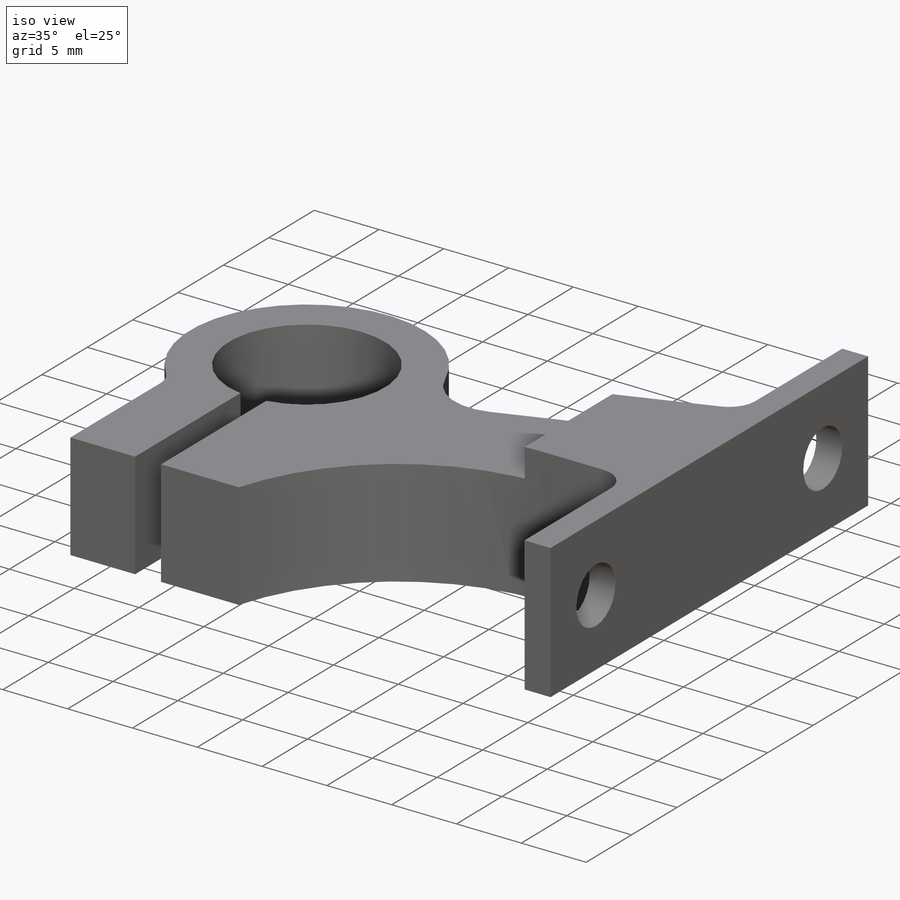
[diagram: iso view]
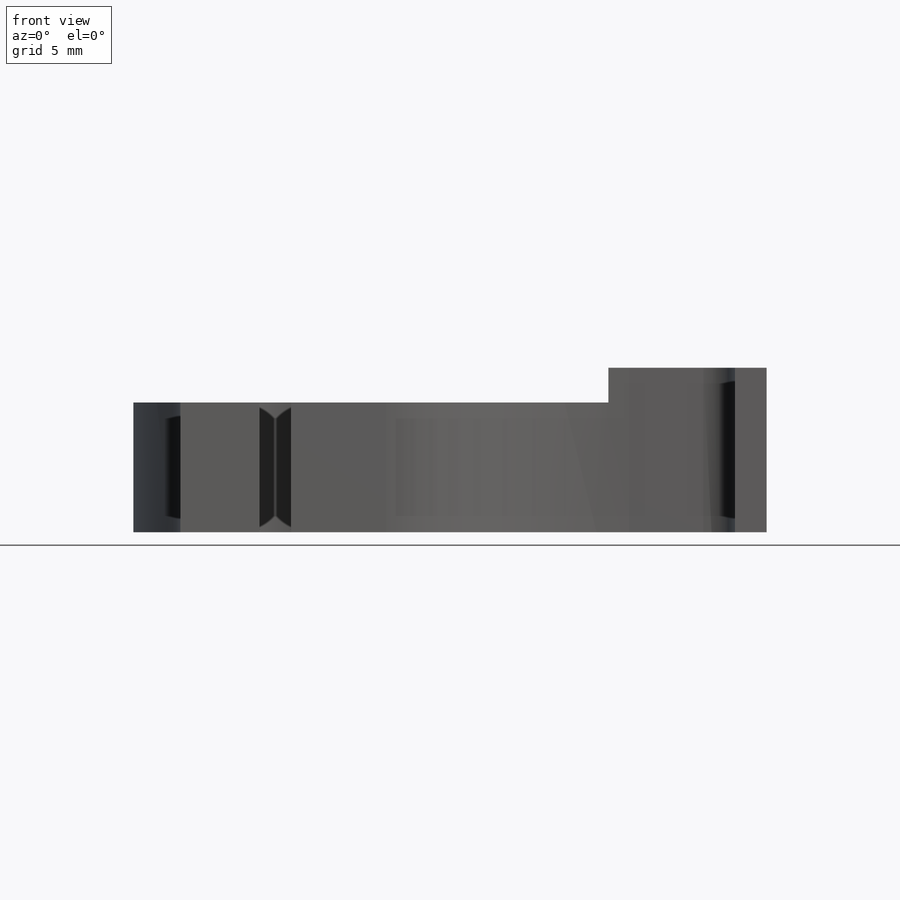
[diagram: front view]
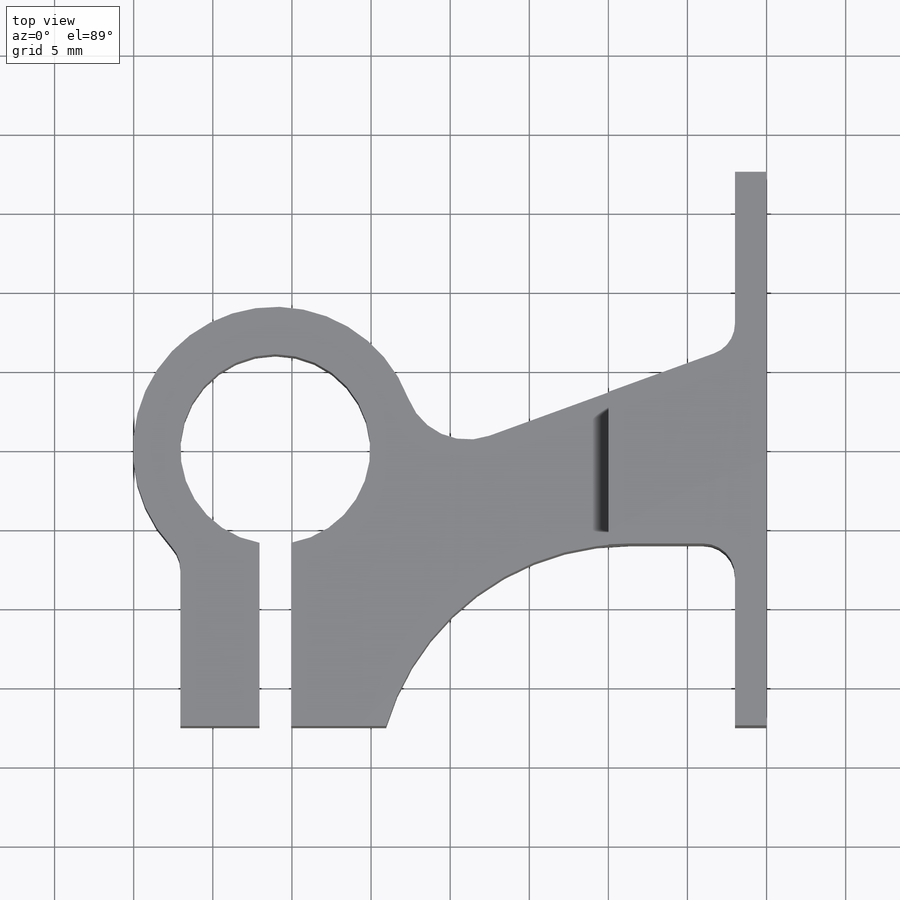
[diagram: top view]
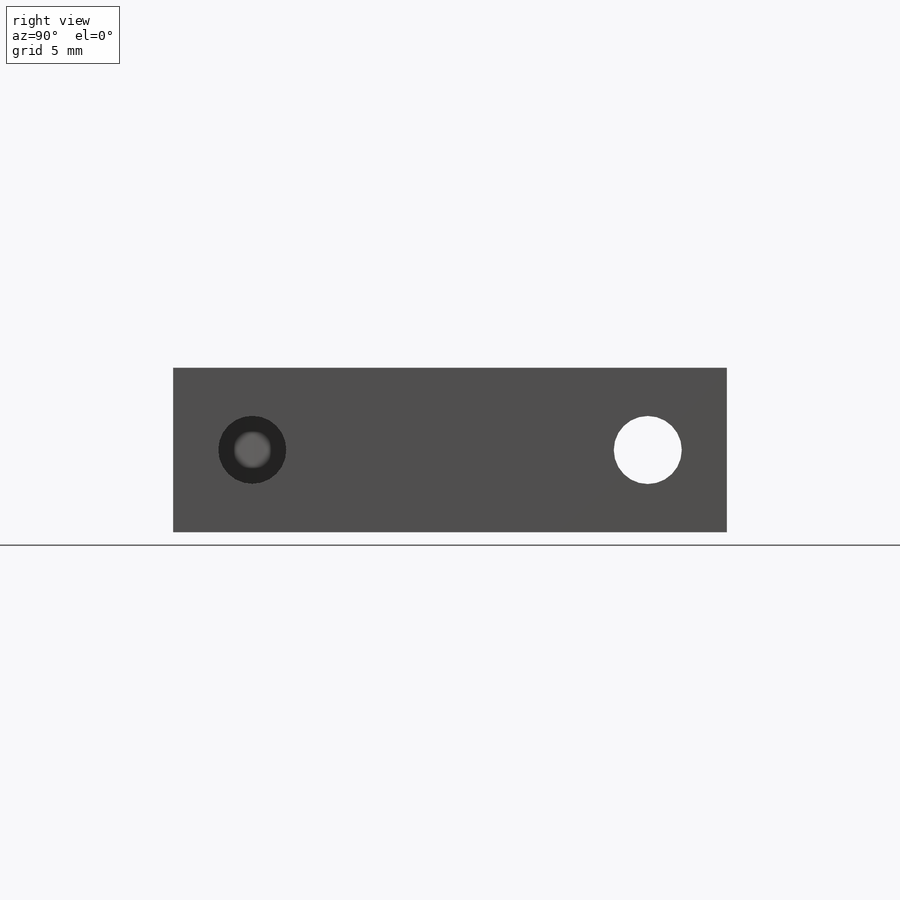
[diagram: right view]
SOLIDWORKS PART (.sldprt)
format: sldprt  version: not decoded by parser v0  size: 302,080 bytes
history: native  units: mm
features: sketch x9, cut_extrude x6, fillet x4, material x1, extrude x1, hole x1, thread x1 (+16 scaffold rows collapsed)
feature tree (39):
  scaffold x16  (default folders/planes/origin — collapsed)
  material  "Material <not specified>"
  sketch  "Sketch1"  dims[D1=48.0mm D2=35.0mm]
  extrude  "Extrude2"  Depth=10.4mm
  sketch  "Sketch2"  dims[D1=10.0mm]
  cut_extrude  "Extrude3"  Depth=2.2mm
  sketch  "Sketch3"  dims[D1=12.0mm D2=31.05mm]
  cut_extrude  "Extrude4"  [1 undecoded]
  sketch  "Sketch4"  dims[c1.D1=18.0mm c1.D2=2.0mm c1.D3=2.0mm c1.D4=5.0mm c1.D5=6.0mm c1.D6=34.5mm c2.D6=20.0deg c2.D7=11.0mm c2.D8=11.5mm]
  cut_extrude  "Extrude5"  [1 undecoded]
  sketch  "Sketch5"  dims[D1=6.0mm D3=6.0mm D2=5.5mm]
  cut_extrude  "Extrude6"  Depth=3.5mm
  sketch  "Sketch6"  dims[D1=3.6mm]
  cut_extrude  "Extrude7"  [1 undecoded]
  fillet  "Fillet1"  Radius=16mm
  hole  "M3x0.5 Tapped Hole1"  Diameter=2.5mm Depth=7.5mm
  sketch  "Sketch9"  dims[D1=5.5mm]
  sketch  "Sketch8"  dims[hole-wizard template sketch: 50 standard entries collapsed; hole parameters above]
  thread  "Hole Thread2"  Diameter=6mm  [1 undecoded]
  sketch  "Sketch11"  dims[D1=4.3mm D2=5.0mm D3=25.0mm D4=5.2mm]
  cut_extrude  "Extrude9"  [1 undecoded]
  fillet  "Fillet2"  Radius=2mm
  fillet  "Fillet3"  Radius=4mm
  fillet  "Fillet5"  Radius=2mm
decode coverage: 18 of 22 modeling features carry decoded parameters
note: ~ marks probable driven/reference dimensions
note: 5 parameter values undecoded
summary: no parameter record found for 4 features
note: suppression state not decoded; provenance and decode notes live in map.json
